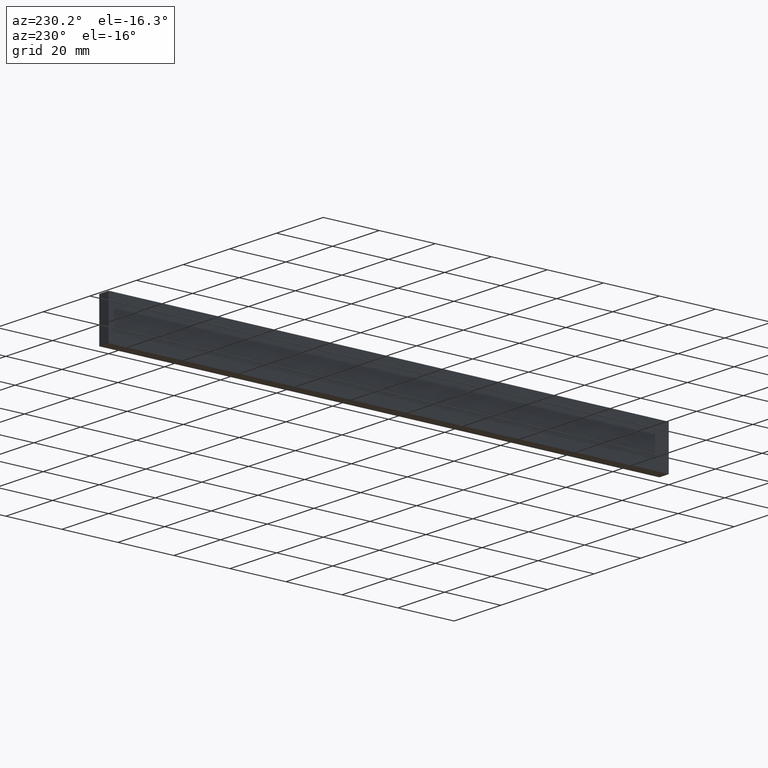
[diagram: clean part render]
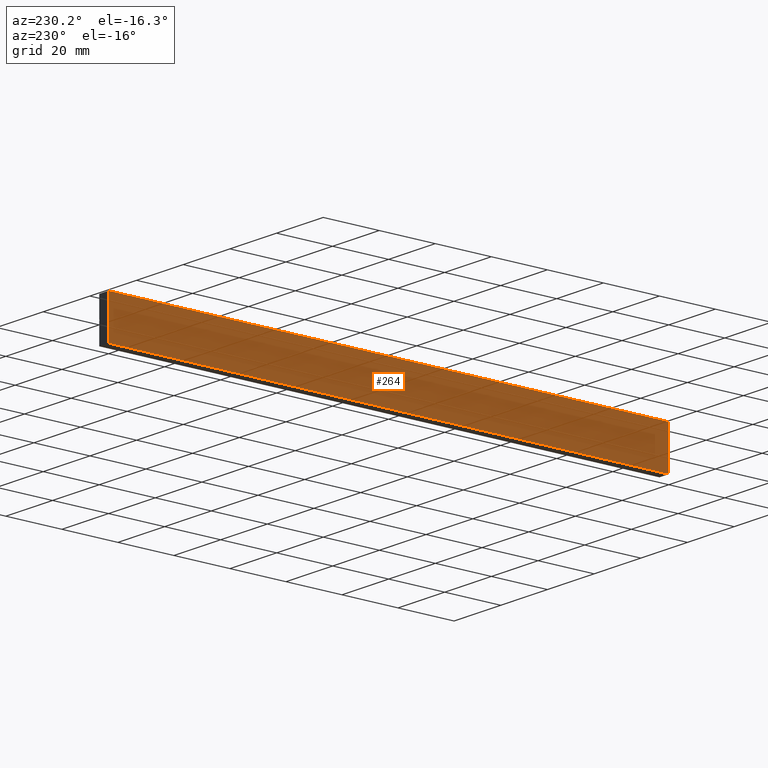
[diagram: same view with one face highlighted and labeled with its STEP entity id]
A machine part, auxiliary view. The second image highlights one B-rep face of the part: STEP entity #264.
In plain terms, the highlighted face is a freeform B-spline surface patch.
Its self-contained STEP definition (entity closure, byte-faithful):
#49=CARTESIAN_POINT('',(0.0,0.0,15.0));
#50=VERTEX_POINT('',#49);
#51=CARTESIAN_POINT('',(0.0,0.0,0.0));
#52=VERTEX_POINT('',#51);
#53=CARTESIAN_POINT('',(0.0,0.0,15.0));
#54=CARTESIAN_POINT('',(0.0,0.0,0.0));
#55=QUASI_UNIFORM_CURVE('',1,(#53,#54),.UNSPECIFIED.,.F.,.U.);
#56=EDGE_CURVE('',#50,#52,#55,.T.);
#107=CARTESIAN_POINT('',(0.0,200.0,15.0));
#108=VERTEX_POINT('',#107);
#109=CARTESIAN_POINT('',(0.0,200.0,0.0));
#110=VERTEX_POINT('',#109);
#111=CARTESIAN_POINT('',(0.0,200.0,15.0));
#112=CARTESIAN_POINT('',(0.0,200.0,0.0));
#113=QUASI_UNIFORM_CURVE('',1,(#111,#112),.UNSPECIFIED.,.F.,.U.);
#114=EDGE_CURVE('',#108,#110,#113,.T.);
#172=CARTESIAN_POINT('',(0.0,200.0,15.0));
#173=CARTESIAN_POINT('',(0.0,0.0,15.0));
#174=QUASI_UNIFORM_CURVE('',1,(#172,#173),.UNSPECIFIED.,.F.,.U.);
#175=EDGE_CURVE('',#108,#50,#174,.T.);
#243=CARTESIAN_POINT('',(0.0,200.0,0.0));
#244=CARTESIAN_POINT('',(0.0,0.0,0.0));
#245=QUASI_UNIFORM_CURVE('',1,(#243,#244),.UNSPECIFIED.,.F.,.U.);
#246=EDGE_CURVE('',#110,#52,#245,.T.);
#253=CARTESIAN_POINT('',(0.0,-9.989999612361171,-0.749249970927090));
#254=CARTESIAN_POINT('',(0.0,-9.989999612361171,15.749250373258439));
#255=CARTESIAN_POINT('',(0.0,209.990004976779200,-0.749249970927090));
#256=CARTESIAN_POINT('',(0.0,209.990004976779200,15.749250373258439));
#257=B_SPLINE_SURFACE_WITH_KNOTS('',1,1,((#253,#255),(#254,#256)),.UNSPECIFIED.,.F.,.F.,.U.,(2,2),(2,2),(0.0,16.498500344185530),(0.0,219.980004589140410),.UNSPECIFIED.);
#258=ORIENTED_EDGE('',*,*,#56,.F.);
#259=ORIENTED_EDGE('',*,*,#175,.F.);
#260=ORIENTED_EDGE('',*,*,#114,.T.);
#261=ORIENTED_EDGE('',*,*,#246,.T.);
#262=EDGE_LOOP('',(#258,#259,#260,#261));
#263=FACE_OUTER_BOUND('',#262,.T.);
#264=ADVANCED_FACE('',(#263),#257,.T.);